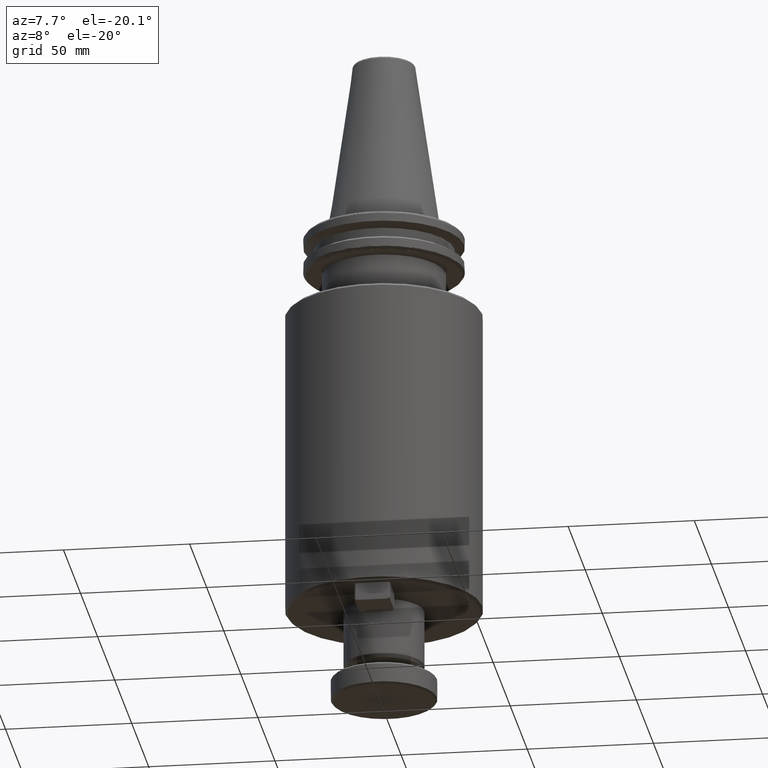
[diagram: clean part render]
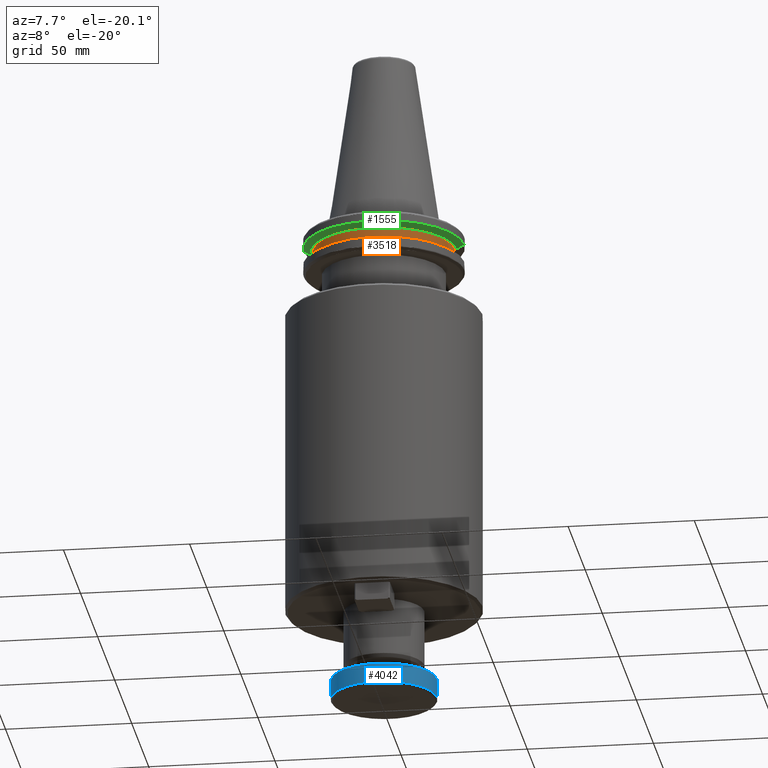
[diagram: same view with three faces highlighted in distinct colors, each labeled with its STEP entity id]
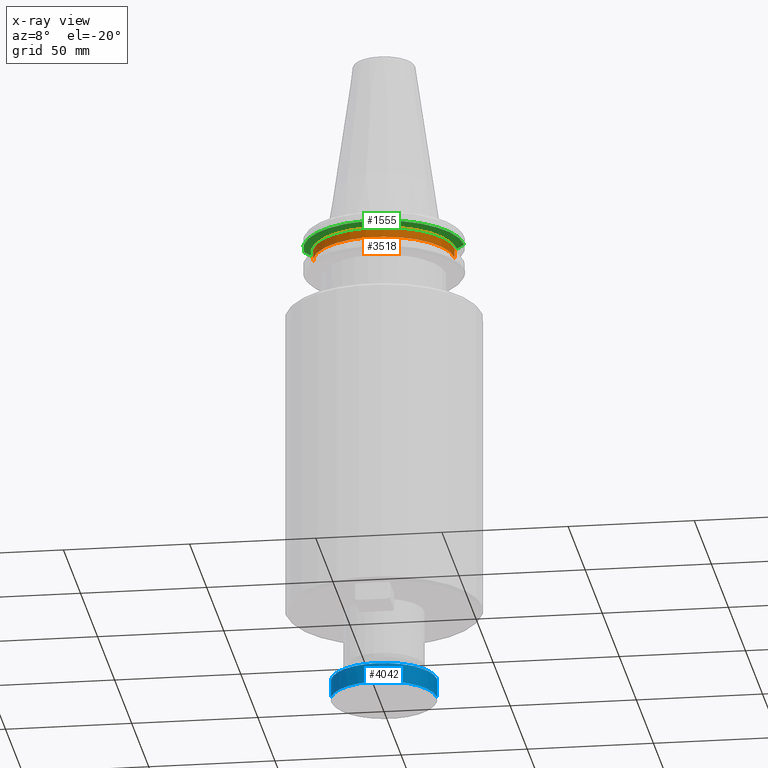
[diagram: x-ray of the same camera — body ghosted, the three highlighted faces saturated]
A machine part, auxiliary view with three faces highlighted in distinct colors.
The next image is the same camera in x-ray (body ghosted, the three faces saturated) — at least one of them is partly hidden behind the body in this view.
Their STEP definitions:

[orange] entity #3518 — the highlighted cylindrical surface (partial cylindrical patch) has radius 28 mm, axis along (0, 0, 1).
#24 = DIRECTION ( 'NONE',  ( 1.000000000000000000, 0.0000000000000000000, 0.0000000000000000000 ) ) ;
#25 = DIRECTION ( 'NONE',  ( -0.0000000000000000000, -0.0000000000000000000, -1.000000000000000000 ) ) ;
#31 = CARTESIAN_POINT ( 'NONE',  ( 0.0000000000000000000, 0.0000000000000000000, -9.199999999999999300 ) ) ;
#233 = AXIS2_PLACEMENT_3D ( 'NONE', #2394, #405, #2720 ) ;
#405 = DIRECTION ( 'NONE',  ( 0.0000000000000000000, 0.0000000000000000000, 1.000000000000000000 ) ) ;
#813 = VERTEX_POINT ( 'NONE', #4020 ) ;
#873 = CARTESIAN_POINT ( 'NONE',  ( -28.00000000000000000, 3.429011037612589300E-015, -13.00000000000001100 ) ) ;
#1117 = AXIS2_PLACEMENT_3D ( 'NONE', #1417, #1505, #1343 ) ;
#1343 = DIRECTION ( 'NONE',  ( 1.000000000000000000, 0.0000000000000000000, 0.0000000000000000000 ) ) ;
#1417 = CARTESIAN_POINT ( 'NONE',  ( 0.0000000000000000000, 0.0000000000000000000, 113.5216080541959500 ) ) ;
#1460 = ORIENTED_EDGE ( 'NONE', *, *, #3273, .F. ) ;
#1505 = DIRECTION ( 'NONE',  ( 0.0000000000000000000, 0.0000000000000000000, 1.000000000000000000 ) ) ;
#1800 = ORIENTED_EDGE ( 'NONE', *, *, #2931, .T. ) ;
#1851 = EDGE_CURVE ( 'NONE', #813, #4213, #3632, .T. ) ;
#1984 = FACE_OUTER_BOUND ( 'NONE', #2574, .T. ) ;
#2061 = AXIS2_PLACEMENT_3D ( 'NONE', #31, #25, #24 ) ;
#2089 = CYLINDRICAL_SURFACE ( 'NONE', #1117, 28.00000000000000000 ) ;
#2317 = CARTESIAN_POINT ( 'NONE',  ( 28.00000000000000000, 0.0000000000000000000, -13.00000000000001100 ) ) ;
#2394 = CARTESIAN_POINT ( 'NONE',  ( 0.0000000000000000000, 0.0000000000000000000, -13.00000000000001100 ) ) ;
#2408 = CARTESIAN_POINT ( 'NONE',  ( -28.00000000000000000, 3.429011037612589300E-015, -9.199999999999999300 ) ) ;
#2574 = EDGE_LOOP ( 'NONE', ( #1460, #3998, #1800, #3184 ) ) ;
#2645 = EDGE_CURVE ( 'NONE', #3658, #2857, #2916, .T. ) ;
#2720 = DIRECTION ( 'NONE',  ( 1.000000000000000000, 0.0000000000000000000, 0.0000000000000000000 ) ) ;
#2857 = VERTEX_POINT ( 'NONE', #2317 ) ;
#2916 = CIRCLE ( 'NONE', #233, 28.00000000000000000 ) ;
#2931 = EDGE_CURVE ( 'NONE', #2857, #813, #3928, .T. ) ;
#2967 = VECTOR ( 'NONE', #3281, 1000.000000000000000 ) ;
#3088 = CARTESIAN_POINT ( 'NONE',  ( 28.00000000000000000, 0.0000000000000000000, 113.5216080541959500 ) ) ;
#3184 = ORIENTED_EDGE ( 'NONE', *, *, #1851, .T. ) ;
#3273 = EDGE_CURVE ( 'NONE', #3658, #4213, #4244, .T. ) ;
#3281 = DIRECTION ( 'NONE',  ( 0.0000000000000000000, 0.0000000000000000000, 1.000000000000000000 ) ) ;
#3386 = VECTOR ( 'NONE', #3701, 1000.000000000000000 ) ;
#3518 = ADVANCED_FACE ( 'NONE', ( #1984 ), #2089, .T. ) ;
#3632 = CIRCLE ( 'NONE', #2061, 28.00000000000000000 ) ;
#3658 = VERTEX_POINT ( 'NONE', #873 ) ;
#3701 = DIRECTION ( 'NONE',  ( 0.0000000000000000000, 0.0000000000000000000, 1.000000000000000000 ) ) ;
#3712 = CARTESIAN_POINT ( 'NONE',  ( -28.00000000000000000, 3.429011037612589300E-015, 113.5216080541959500 ) ) ;
#3928 = LINE ( 'NONE', #3088, #2967 ) ;
#3998 = ORIENTED_EDGE ( 'NONE', *, *, #2645, .T. ) ;
#4020 = CARTESIAN_POINT ( 'NONE',  ( 28.00000000000000000, 0.0000000000000000000, -9.199999999999999300 ) ) ;
#4213 = VERTEX_POINT ( 'NONE', #2408 ) ;
#4244 = LINE ( 'NONE', #3712, #3386 ) ;

[blue] entity #4042 — the highlighted cylindrical surface (partial cylindrical patch) has radius 21 mm, axis along (0, 0, 1).
#124 = CARTESIAN_POINT ( 'NONE',  ( -21.00000000000001800, 2.571758278209444000E-015, -188.7000000000000700 ) ) ;
#266 = VECTOR ( 'NONE', #1581, 1000.000000000000000 ) ;
#597 = ORIENTED_EDGE ( 'NONE', *, *, #2219, .F. ) ;
#635 = CYLINDRICAL_SURFACE ( 'NONE', #2577, 21.00000000000000000 ) ;
#712 = CARTESIAN_POINT ( 'NONE',  ( 2.571758278209441700E-015, -21.00000000000000000, -188.7000000000000700 ) ) ;
#772 = DIRECTION ( 'NONE',  ( 0.0000000000000000000, 0.0000000000000000000, 1.000000000000000000 ) ) ;
#829 = CARTESIAN_POINT ( 'NONE',  ( -21.00000000000000000, 2.571758278209441700E-015, 0.0000000000000000000 ) ) ;
#902 = DIRECTION ( 'NONE',  ( 0.0000000000000000000, 0.0000000000000000000, 1.000000000000000000 ) ) ;
#1037 = EDGE_CURVE ( 'NONE', #1669, #3112, #1543, .T. ) ;
#1144 = CARTESIAN_POINT ( 'NONE',  ( 21.00000000000000000, 0.0000000000000000000, 0.0000000000000000000 ) ) ;
#1378 = CARTESIAN_POINT ( 'NONE',  ( 0.0000000000000000000, 0.0000000000000000000, -188.7000000000000700 ) ) ;
#1543 = CIRCLE ( 'NONE', #2184, 21.00000000000002100 ) ;
#1581 = DIRECTION ( 'NONE',  ( 0.0000000000000000000, 0.0000000000000000000, 1.000000000000000000 ) ) ;
#1637 = CIRCLE ( 'NONE', #3320, 21.00000000000002100 ) ;
#1669 = VERTEX_POINT ( 'NONE', #712 ) ;
#1682 = VECTOR ( 'NONE', #772, 1000.000000000000000 ) ;
#1686 = ORIENTED_EDGE ( 'NONE', *, *, #2372, .T. ) ;
#1724 = ORIENTED_EDGE ( 'NONE', *, *, #3661, .F. ) ;
#1924 = DIRECTION ( 'NONE',  ( -1.000000000000000000, 0.0000000000000000000, 0.0000000000000000000 ) ) ;
#1982 = CIRCLE ( 'NONE', #2121, 21.00000000000000000 ) ;
#2033 = LINE ( 'NONE', #1144, #266 ) ;
#2067 = EDGE_CURVE ( 'NONE', #4171, #3112, #2033, .T. ) ;
#2103 = DIRECTION ( 'NONE',  ( -1.000000000000000000, 0.0000000000000000000, 0.0000000000000000000 ) ) ;
#2107 = DIRECTION ( 'NONE',  ( -0.0000000000000000000, -0.0000000000000000000, 1.000000000000000000 ) ) ;
#2110 = CARTESIAN_POINT ( 'NONE',  ( 0.0000000000000000000, 0.0000000000000000000, -188.7000000000000700 ) ) ;
#2121 = AXIS2_PLACEMENT_3D ( 'NONE', #3215, #902, #2882 ) ;
#2180 = DIRECTION ( 'NONE',  ( 1.000000000000000000, 0.0000000000000000000, 0.0000000000000000000 ) ) ;
#2184 = AXIS2_PLACEMENT_3D ( 'NONE', #2110, #2107, #2103 ) ;
#2219 = EDGE_CURVE ( 'NONE', #2775, #1669, #1637, .T. ) ;
#2301 = ORIENTED_EDGE ( 'NONE', *, *, #2067, .T. ) ;
#2372 = EDGE_CURVE ( 'NONE', #3231, #4171, #1982, .T. ) ;
#2577 = AXIS2_PLACEMENT_3D ( 'NONE', #4048, #3763, #2180 ) ;
#2726 = CARTESIAN_POINT ( 'NONE',  ( 21.00000000000000000, 0.0000000000000000000, -196.3000000000000400 ) ) ;
#2775 = VERTEX_POINT ( 'NONE', #124 ) ;
#2882 = DIRECTION ( 'NONE',  ( 1.000000000000000000, 0.0000000000000000000, 0.0000000000000000000 ) ) ;
#2983 = ORIENTED_EDGE ( 'NONE', *, *, #1037, .F. ) ;
#2993 = EDGE_LOOP ( 'NONE', ( #1724, #1686, #2301, #2983, #597 ) ) ;
#3112 = VERTEX_POINT ( 'NONE', #3609 ) ;
#3215 = CARTESIAN_POINT ( 'NONE',  ( 0.0000000000000000000, 0.0000000000000000000, -196.3000000000000400 ) ) ;
#3231 = VERTEX_POINT ( 'NONE', #3921 ) ;
#3237 = DIRECTION ( 'NONE',  ( -0.0000000000000000000, -0.0000000000000000000, 1.000000000000000000 ) ) ;
#3284 = FACE_OUTER_BOUND ( 'NONE', #2993, .T. ) ;
#3320 = AXIS2_PLACEMENT_3D ( 'NONE', #1378, #3237, #1924 ) ;
#3434 = LINE ( 'NONE', #829, #1682 ) ;
#3609 = CARTESIAN_POINT ( 'NONE',  ( 21.00000000000001800, 0.0000000000000000000, -188.7000000000000700 ) ) ;
#3661 = EDGE_CURVE ( 'NONE', #3231, #2775, #3434, .T. ) ;
#3763 = DIRECTION ( 'NONE',  ( 0.0000000000000000000, 0.0000000000000000000, 1.000000000000000000 ) ) ;
#3921 = CARTESIAN_POINT ( 'NONE',  ( -21.00000000000000000, 2.571758278209441700E-015, -196.3000000000000400 ) ) ;
#4042 = ADVANCED_FACE ( 'NONE', ( #3284 ), #635, .T. ) ;
#4048 = CARTESIAN_POINT ( 'NONE',  ( 0.0000000000000000000, 0.0000000000000000000, 0.0000000000000000000 ) ) ;
#4171 = VERTEX_POINT ( 'NONE', #2726 ) ;

[green] entity #1555 — the highlighted conical surface has half-angle 60 deg.
#590 = VECTOR ( 'NONE', #1034, 1000.000000000000000 ) ;
#749 = CIRCLE ( 'NONE', #2734, 31.75000000000000000 ) ;
#765 = CARTESIAN_POINT ( 'NONE',  ( 28.94089653438086500, 0.0000000000000000000, -9.199999999999999300 ) ) ;
#793 = ORIENTED_EDGE ( 'NONE', *, *, #801, .F. ) ;
#801 = EDGE_CURVE ( 'NONE', #3614, #3265, #3483, .T. ) ;
#889 = DIRECTION ( 'NONE',  ( 1.000000000000000000, 0.0000000000000000000, 0.0000000000000000000 ) ) ;
#892 = CARTESIAN_POINT ( 'NONE',  ( 0.0000000000000000000, 0.0000000000000000000, -7.578163357943284800 ) ) ;
#904 = DIRECTION ( 'NONE',  ( 0.0000000000000000000, -0.0000000000000000000, 1.000000000000000000 ) ) ;
#988 = CARTESIAN_POINT ( 'NONE',  ( -28.94089653438086500, 3.716245608910637900E-015, -9.199999999999999300 ) ) ;
#1034 = DIRECTION ( 'NONE',  ( 0.8660254037844390400, 0.0000000000000000000, 0.4999999999999993300 ) ) ;
#1131 = AXIS2_PLACEMENT_3D ( 'NONE', #1848, #1844, #1843 ) ;
#1192 = EDGE_CURVE ( 'NONE', #3614, #4224, #1684, .T. ) ;
#1370 = LINE ( 'NONE', #3025, #590 ) ;
#1503 = AXIS2_PLACEMENT_3D ( 'NONE', #892, #904, #889 ) ;
#1544 = ORIENTED_EDGE ( 'NONE', *, *, #1192, .T. ) ;
#1555 = ADVANCED_FACE ( 'NONE', ( #2489 ), #3285, .T. ) ;
#1562 = ORIENTED_EDGE ( 'NONE', *, *, #3349, .T. ) ;
#1633 = VECTOR ( 'NONE', #3620, 1000.000000000000000 ) ;
#1684 = CIRCLE ( 'NONE', #1131, 28.94089653438086500 ) ;
#1843 = DIRECTION ( 'NONE',  ( 1.000000000000000000, 0.0000000000000000000, 0.0000000000000000000 ) ) ;
#1844 = DIRECTION ( 'NONE',  ( 0.0000000000000000000, -0.0000000000000000000, 1.000000000000000000 ) ) ;
#1848 = CARTESIAN_POINT ( 'NONE',  ( 0.0000000000000000000, 0.0000000000000000000, -9.199999999999999300 ) ) ;
#2489 = FACE_OUTER_BOUND ( 'NONE', #2521, .T. ) ;
#2521 = EDGE_LOOP ( 'NONE', ( #793, #1544, #2733, #1562 ) ) ;
#2565 = EDGE_CURVE ( 'NONE', #4224, #3984, #1370, .T. ) ;
#2733 = ORIENTED_EDGE ( 'NONE', *, *, #2565, .T. ) ;
#2734 = AXIS2_PLACEMENT_3D ( 'NONE', #3511, #3505, #3495 ) ;
#2852 = CARTESIAN_POINT ( 'NONE',  ( 31.75000000000000000, 0.0000000000000000000, -7.578163357943286500 ) ) ;
#3025 = CARTESIAN_POINT ( 'NONE',  ( 31.75000000000000000, 0.0000000000000000000, -7.578163357943284800 ) ) ;
#3265 = VERTEX_POINT ( 'NONE', #3785 ) ;
#3285 = CONICAL_SURFACE ( 'NONE', #1503, 31.75000000000000000, 1.047197551196598500 ) ;
#3349 = EDGE_CURVE ( 'NONE', #3984, #3265, #749, .T. ) ;
#3483 = LINE ( 'NONE', #4094, #1633 ) ;
#3495 = DIRECTION ( 'NONE',  ( 1.000000000000000000, 0.0000000000000000000, -5.463695987328526400E-017 ) ) ;
#3505 = DIRECTION ( 'NONE',  ( -0.0000000000000000000, -0.0000000000000000000, -1.000000000000000000 ) ) ;
#3511 = CARTESIAN_POINT ( 'NONE',  ( 0.0000000000000000000, 0.0000000000000000000, -7.578163357943284800 ) ) ;
#3614 = VERTEX_POINT ( 'NONE', #988 ) ;
#3620 = DIRECTION ( 'NONE',  ( -0.8660254037844390400, 1.060575238724907400E-016, 0.4999999999999993300 ) ) ;
#3785 = CARTESIAN_POINT ( 'NONE',  ( -31.75000000000000000, 3.888253587292846500E-015, -7.578163357943284800 ) ) ;
#3984 = VERTEX_POINT ( 'NONE', #2852 ) ;
#4094 = CARTESIAN_POINT ( 'NONE',  ( -31.75000000000000000, 3.888253587292846500E-015, -7.578163357943284800 ) ) ;
#4224 = VERTEX_POINT ( 'NONE', #765 ) ;